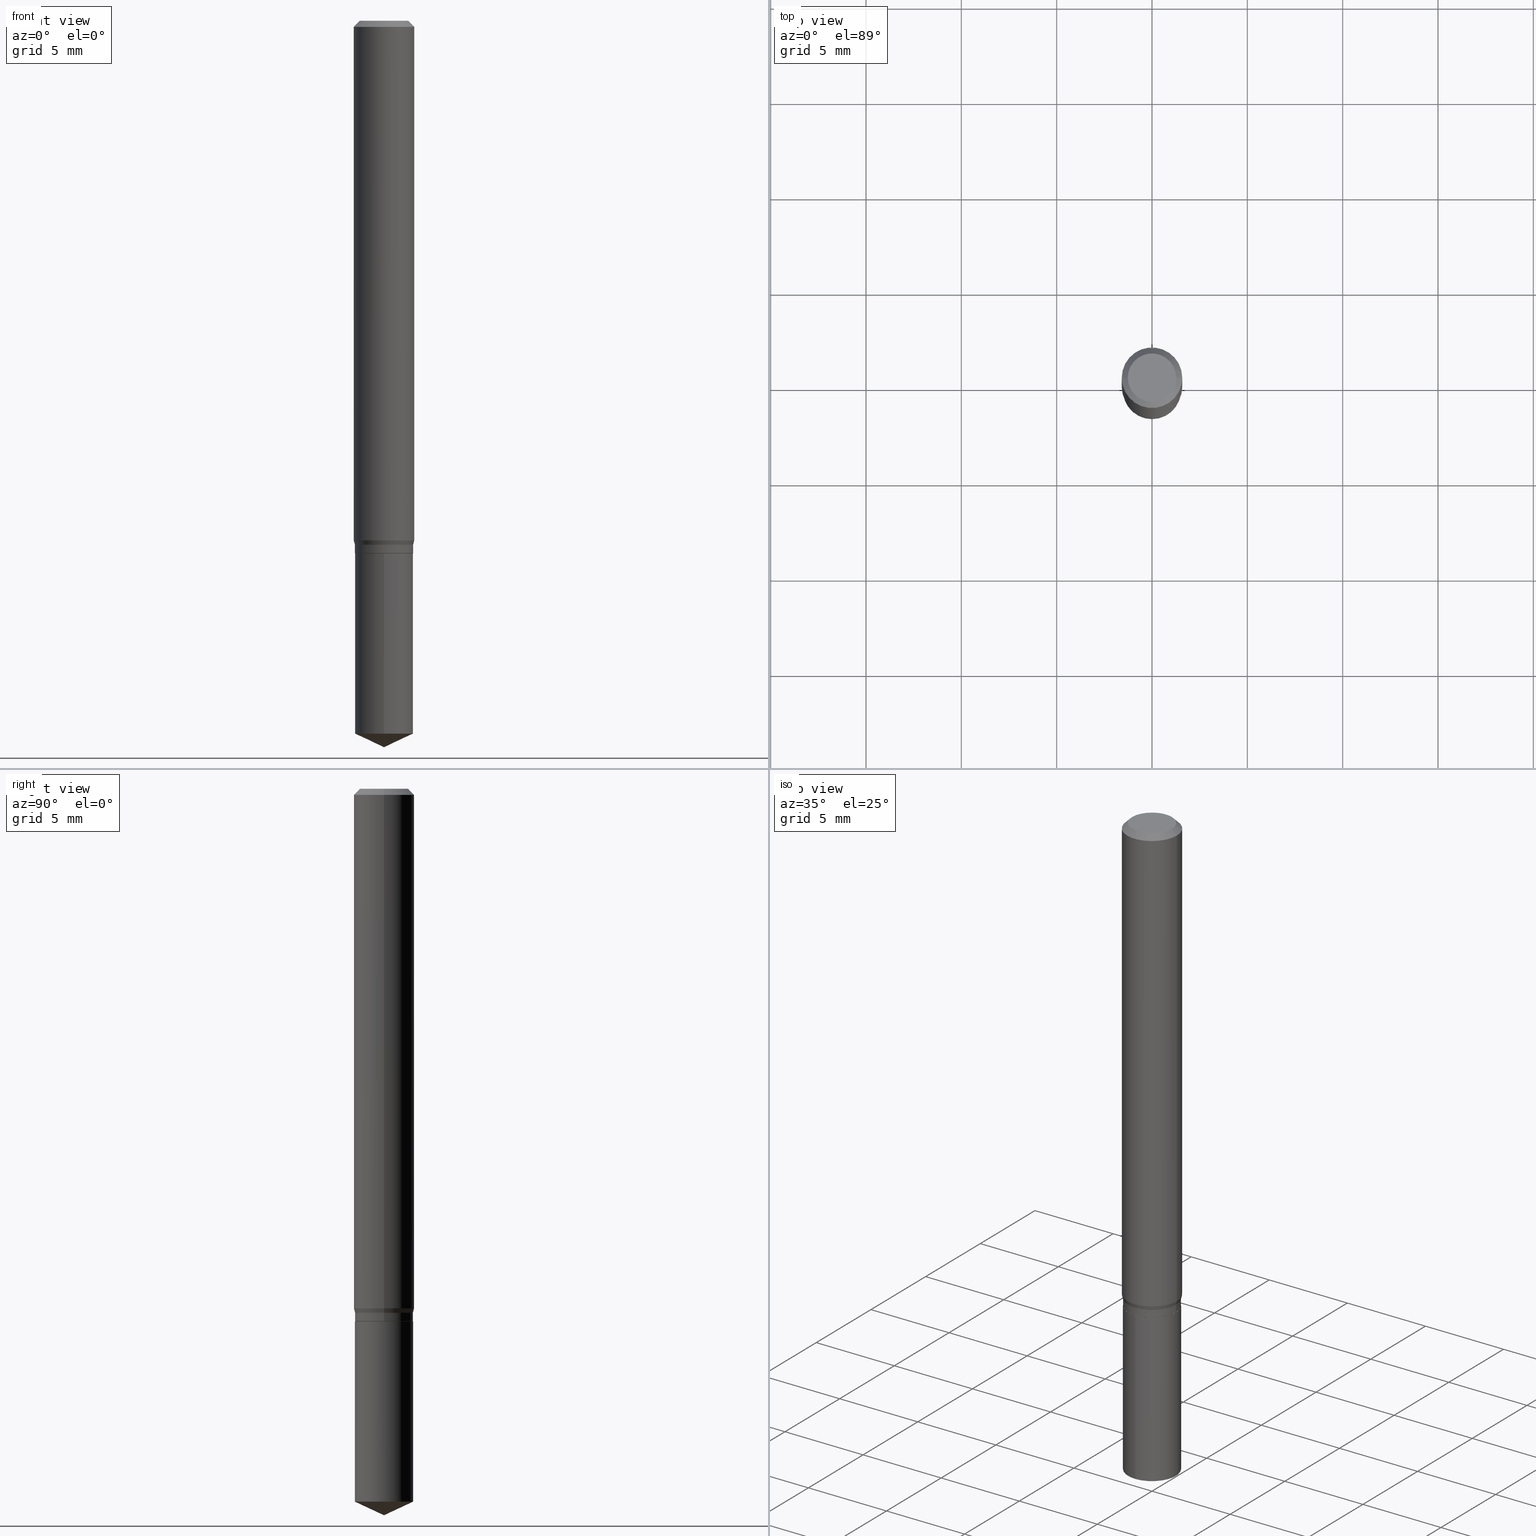
[diagram: canonical four-view strip — front | top / right | iso, engineering-drawing reading convention]
A machine part, canonical four-view strip (front | top / right | iso — engineering-drawing reading convention). The complete STEP part file that produces these views, byte-faithful:
ISO-10303-21;
HEADER;
FILE_DESCRIPTION (( 'STEP AP203' ),
    '1' );
FILE_NAME ('07396.STEP',
    '2024-04-23T21:02:20',
    ( '' ),
    ( '' ),
    'SwSTEP 2.0',
    'SolidWorks 2023',
    '' );
FILE_SCHEMA (( 'CONFIG_CONTROL_DESIGN' ));
ENDSEC;

DATA;
#1 = CARTESIAN_POINT ( 'NONE',  ( 2.688792952400557567E-29, -3.838883732058038598E-15, -1.099499999999999922 ) ) ;
#2 = ORIENTED_EDGE ( 'NONE', *, *, #121, .T. ) ;
#3 = EDGE_CURVE ( 'NONE', #392, #163, #63, .T. ) ;
#4 = DIRECTION ( 'NONE',  ( 1.000000000000000000, -6.982962677686265922E-15, 0.000000000000000000 ) ) ;
#5 = LOCAL_TIME ( 17, 2, 20.00000000000000000, #62 ) ;
#6 = CIRCLE ( 'NONE', #152, 0.04999999999999999584 ) ;
#7 = VERTEX_POINT ( 'NONE', #17 ) ;
#8 = CC_DESIGN_DATE_AND_TIME_ASSIGNMENT ( #375, #147, ( #234 ) ) ;
#9 = ORIENTED_EDGE ( 'NONE', *, *, #442, .T. ) ;
#10 = CARTESIAN_POINT ( 'NONE',  ( 3.056836007731440539E-31, -4.364351673553960451E-17, -0.01250000000000008049 ) ) ;
#11 = EDGE_LOOP ( 'NONE', ( #280, #80, #310, #47 ) ) ;
#12 = AXIS2_PLACEMENT_3D ( 'NONE', #243, #367, #105 ) ;
#13 = VECTOR ( 'NONE', #70, 39.37007874015748143 ) ;
#14 = ORIENTED_EDGE ( 'NONE', *, *, #213, .T. ) ;
#15 = ADVANCED_FACE ( 'NONE', ( #106 ), #421, .T. ) ;
#16 = ORIENTED_EDGE ( 'NONE', *, *, #42, .F. ) ;
#17 = CARTESIAN_POINT ( 'NONE',  ( -4.193269087950243510E-16, -0.06005000000000513399, -1.471998225127792548 ) ) ;
#18 = FACE_OUTER_BOUND ( 'NONE', #236, .T. ) ;
#19 = AXIS2_PLACEMENT_3D ( 'NONE', #364, #134, #338 ) ;
#20 = DIRECTION ( 'NONE',  ( 1.000000000000000000, -6.982962677686265922E-15, 0.000000000000000000 ) ) ;
#21 = ADVANCED_BREP_SHAPE_REPRESENTATION ( '07396', ( #36, #209, #160 ), #420 ) ;
#22 = ADVANCED_FACE ( 'NONE', ( #445 ), #39, .T. ) ;
#23 = DIRECTION ( 'NONE',  ( -6.982962677686265922E-15, -1.000000000000000000, 4.549288915344318469E-15 ) ) ;
#24 = VERTEX_POINT ( 'NONE', #140 ) ;
#25 = DIRECTION ( 'NONE',  ( -2.445468806185136597E-29, 3.491481338843145583E-15, 1.000000000000000000 ) ) ;
#26 = DIRECTION ( 'NONE',  ( 0.7071067811865232589, -2.468850131082003836E-15, 0.7071067811865715536 ) ) ;
#27 = DIRECTION ( 'NONE',  ( -2.445468806185136597E-29, 3.491481338843145583E-15, 1.000000000000000000 ) ) ;
#28 = PERSON_AND_ORGANIZATION ( #334, #453 ) ;
#29 = APPROVAL_PERSON_ORGANIZATION ( #219, #416, #337 ) ;
#30 = ADVANCED_FACE ( 'NONE', ( #441 ), #471, .T. ) ;
#31 = ORIENTED_EDGE ( 'NONE', *, *, #107, .T. ) ;
#32 = DIRECTION ( 'NONE',  ( -6.982962677686267499E-15, -1.000000000000000000, 3.520397390770436909E-15 ) ) ;
#33 = CARTESIAN_POINT ( 'NONE',  ( 0.000000000000000000, 0.000000000000000000, 0.000000000000000000 ) ) ;
#34 = DIRECTION ( 'NONE',  ( 0.7071067811865453523, -7.319954787623248157E-15, -0.7071067811865496822 ) ) ;
#35 = DIRECTION ( 'NONE',  ( -2.445399690415121530E-29, 3.491580316559632610E-15, 1.000000000000000000 ) ) ;
#36 = MANIFOLD_SOLID_BREP ( 'Body-Move/Copy2[1]', #290 ) ;
#37 = CARTESIAN_POINT ( 'NONE',  ( -0.06004999999999999921, -3.351101895804343500E-15, -1.082000000000000073 ) ) ;
#38 = VECTOR ( 'NONE', #57, 39.37007874015748854 ) ;
#39 = CONICAL_SURFACE ( 'NONE', #332, 0.06004999999999999921, 0.2617993877991489082 ) ;
#40 = EDGE_CURVE ( 'NONE', #347, #46, #122, .T. ) ;
#41 = LINE ( 'NONE', #228, #240 ) ;
#42 = EDGE_CURVE ( 'NONE', #24, #468, #172, .T. ) ;
#43 = ORIENTED_EDGE ( 'NONE', *, *, #3, .T. ) ;
#44 = LOCAL_TIME ( 17, 2, 20.00000000000000000, #437 ) ;
#45 = VECTOR ( 'NONE', #26, 39.37007874015748854 ) ;
#46 = VERTEX_POINT ( 'NONE', #469 ) ;
#47 = ORIENTED_EDGE ( 'NONE', *, *, #355, .F. ) ;
#48 = EDGE_LOOP ( 'NONE', ( #84, #235, #351, #239 ) ) ;
#49 = CIRCLE ( 'NONE', #488, 0.06250000000000000000 ) ;
#50 = EDGE_CURVE ( 'NONE', #461, #273, #289, .T. ) ;
#51 = EDGE_LOOP ( 'NONE', ( #198, #196 ) ) ;
#52 = ORIENTED_EDGE ( 'NONE', *, *, #114, .T. ) ;
#53 = CARTESIAN_POINT ( 'NONE',  ( 0.06250000000000006939, -4.364351673553921624E-16, 3.047610484872463374E-30 ) ) ;
#54 = ORIENTED_EDGE ( 'NONE', *, *, #121, .F. ) ;
#55 =( CONVERSION_BASED_UNIT ( 'INCH', #104 ) LENGTH_UNIT ( ) NAMED_UNIT ( #157 ) );
#56 = AXIS2_PLACEMENT_3D ( 'NONE', #319, #64, #478 ) ;
#57 = DIRECTION ( 'NONE',  ( -6.328713451373378845E-15, -0.9063077870366499367, 0.4226182617406992748 ) ) ;
#58 = DATE_AND_TIME ( #440, #395 ) ;
#59 = AXIS2_PLACEMENT_3D ( 'NONE', #262, #346, #150 ) ;
#60 = LINE ( 'NONE', #212, #161 ) ;
#61 = DIRECTION ( 'NONE',  ( -2.445468806185136597E-29, 3.491481338843145583E-15, 1.000000000000000000 ) ) ;
#62 = COORDINATED_UNIVERSAL_TIME_OFFSET ( 5, 0, .BEHIND. ) ;
#63 = LINE ( 'NONE', #360, #465 ) ;
#64 = DIRECTION ( 'NONE',  ( -2.445468806185136597E-29, 3.491481338843145583E-15, 1.000000000000000000 ) ) ;
#65 = CARTESIAN_POINT ( 'NONE',  ( 3.668099535622682155E-29, -5.237370474839448718E-15, -1.500000000000000222 ) ) ;
#66 = CARTESIAN_POINT ( 'NONE',  ( -4.193269087950333736E-16, -0.06005000000000384336, -1.099999999999999645 ) ) ;
#67 = LINE ( 'NONE', #53, #119 ) ;
#68 = SHAPE_DEFINITION_REPRESENTATION ( #123, #21 ) ;
#69 = SECURITY_CLASSIFICATION ( '', '', #136 ) ;
#70 = DIRECTION ( 'NONE',  ( 0.2588190451025202399, 1.565188264969631040E-15, 0.9659258262890684232 ) ) ;
#71 = CONICAL_SURFACE ( 'NONE', #363, 84.42940631927474726, 1.134464013796317783 ) ;
#72 = PERSON_AND_ORGANIZATION_ROLE ( 'classification_officer' ) ;
#73 = DIRECTION ( 'NONE',  ( 2.445468806185136597E-29, -3.491481338843145583E-15, -1.000000000000000000 ) ) ;
#74 = FACE_OUTER_BOUND ( 'NONE', #252, .T. ) ;
#75 = EDGE_CURVE ( 'NONE', #461, #24, #322, .T. ) ;
#76 = DIRECTION ( 'NONE',  ( -2.445468806185136597E-29, 3.491481338843145583E-15, 1.000000000000000000 ) ) ;
#77 = AXIS2_PLACEMENT_3D ( 'NONE', #479, #146, #294 ) ;
#78 = AXIS2_PLACEMENT_3D ( 'NONE', #486, #298, #226 ) ;
#79 = CC_DESIGN_PERSON_AND_ORGANIZATION_ASSIGNMENT ( #279, #94, ( #113 ) ) ;
#80 = ORIENTED_EDGE ( 'NONE', *, *, #40, .T. ) ;
#81 = ORIENTED_EDGE ( 'NONE', *, *, #202, .F. ) ;
#82 = AXIS2_PLACEMENT_3D ( 'NONE', #444, #362, #108 ) ;
#83 = AXIS2_PLACEMENT_3D ( 'NONE', #174, #137, #287 ) ;
#84 = ORIENTED_EDGE ( 'NONE', *, *, #194, .T. ) ;
#85 = CARTESIAN_POINT ( 'NONE',  ( 3.056836007731440539E-31, -4.364351673553960451E-17, -0.01250000000000008049 ) ) ;
#86 = ORIENTED_EDGE ( 'NONE', *, *, #345, .T. ) ;
#87 = EDGE_CURVE ( 'NONE', #24, #461, #301, .T. ) ;
#88 = FACE_OUTER_BOUND ( 'NONE', #357, .T. ) ;
#89 = ORIENTED_EDGE ( 'NONE', *, *, #40, .F. ) ;
#90 = VECTOR ( 'NONE', #97, 39.37007874015748143 ) ;
#91 = VECTOR ( 'NONE', #224, 39.37007874015748143 ) ;
#92 = EDGE_LOOP ( 'NONE', ( #199, #2, #292, #177 ) ) ;
#93 = EDGE_CURVE ( 'NONE', #468, #273, #306, .T. ) ;
#94 = PERSON_AND_ORGANIZATION_ROLE ( 'design_owner' ) ;
#95 = DIRECTION ( 'NONE',  ( 1.000000000000000000, -6.982962677686265922E-15, 0.000000000000000000 ) ) ;
#96 = DIRECTION ( 'NONE',  ( -1.000000000000000000, 6.982962677686266711E-15, 0.000000000000000000 ) ) ;
#97 = DIRECTION ( 'NONE',  ( -2.445399690415121810E-29, 3.491580316559632610E-15, 1.000000000000000000 ) ) ;
#98 = CALENDAR_DATE ( 2024, 23, 4 ) ;
#99 = CARTESIAN_POINT ( 'NONE',  ( -9.260740279983036507E-28, 1.322265303911854087E-13, 37.87007874015748143 ) ) ;
#100 = CIRCLE ( 'NONE', #463, 0.04999999999999999584 ) ;
#101 = CARTESIAN_POINT ( 'NONE',  ( 0.06250000000000000000, -4.724246415962602840E-16, -0.01250000000000008049 ) ) ;
#102 = CIRCLE ( 'NONE', #365, 0.06004999999999999921 ) ;
#103 = CARTESIAN_POINT ( 'NONE',  ( 0.05954999999999999877, -4.256464900183677240E-15, -1.100000000000000089 ) ) ;
#104 = LENGTH_MEASURE_WITH_UNIT ( LENGTH_MEASURE( 0.02539999999999999897 ), #214 );
#105 = DIRECTION ( 'NONE',  ( -6.982962677686265922E-15, -1.000000000000000000, 4.549288915344318469E-15 ) ) ;
#106 = FACE_OUTER_BOUND ( 'NONE', #125, .T. ) ;
#107 = EDGE_CURVE ( 'NONE', #7, #206, #325, .T. ) ;
#108 = DIRECTION ( 'NONE',  ( 1.000000000000000000, -6.982962677686265922E-15, 4.876176775795935793E-29 ) ) ;
#109 = COORDINATED_UNIVERSAL_TIME_OFFSET ( 5, 0, .BEHIND. ) ;
#110 = CARTESIAN_POINT ( 'NONE',  ( 3.668099535622682715E-29, -5.237370474839449507E-15, -1.500000000000000222 ) ) ;
#111 = CC_DESIGN_SECURITY_CLASSIFICATION ( #69, ( #238 ) ) ;
#112 = DIRECTION ( 'NONE',  ( 1.000000000000000000, -6.982962677686267499E-15, 4.876176775795936353E-29 ) ) ;
#113 = PRODUCT ( '07396', '07396', '', ( #305 ) ) ;
#114 = EDGE_CURVE ( 'NONE', #46, #347, #185, .T. ) ;
#115 = DIRECTION ( 'NONE',  ( -1.000000000000000000, 6.982962677686266711E-15, 0.000000000000000000 ) ) ;
#116 = ORIENTED_EDGE ( 'NONE', *, *, #93, .F. ) ;
#117 = CARTESIAN_POINT ( 'NONE',  ( 2.623637044401447807E-29, -3.745858363540191586E-15, -1.072856475521455799 ) ) ;
#118 = VECTOR ( 'NONE', #34, 39.37007874015748143 ) ;
#119 = VECTOR ( 'NONE', #218, 39.37007874015748143 ) ;
#120 = CARTESIAN_POINT ( 'NONE',  ( 0.000000000000000000, 0.000000000000000000, 0.000000000000000000 ) ) ;
#121 = EDGE_CURVE ( 'NONE', #203, #163, #60, .T. ) ;
#122 = CIRCLE ( 'NONE', #315, 0.06004999999999999921 ) ;
#123 = PRODUCT_DEFINITION_SHAPE ( 'NONE', 'NONE',  #234 ) ;
#124 = ORIENTED_EDGE ( 'NONE', *, *, #75, .T. ) ;
#125 = EDGE_LOOP ( 'NONE', ( #307, #233, #130 ) ) ;
#126 = VECTOR ( 'NONE', #457, 39.37007874015748143 ) ;
#127 = CARTESIAN_POINT ( 'NONE',  ( 0.04999999999999999584, -4.077247707424184212E-16, -1.592040838888913461E-18 ) ) ;
#128 = EDGE_CURVE ( 'NONE', #468, #347, #41, .T. ) ;
#129 = VERTEX_POINT ( 'NONE', #458 ) ;
#130 = ORIENTED_EDGE ( 'NONE', *, *, #213, .F. ) ;
#131 = ORIENTED_EDGE ( 'NONE', *, *, #75, .F. ) ;
#132 = APPROVAL_PERSON_ORGANIZATION ( #216, #274, #371 ) ;
#133 = CC_DESIGN_DATE_AND_TIME_ASSIGNMENT ( #225, #451, ( #69 ) ) ;
#134 = DIRECTION ( 'NONE',  ( -2.445468806185136597E-29, 3.491481338843145583E-15, 1.000000000000000000 ) ) ;
#135 = PLANE ( 'NONE',  #82 ) ;
#136 = SECURITY_CLASSIFICATION_LEVEL ( 'unclassified' ) ;
#137 = DIRECTION ( 'NONE',  ( -2.445468806185136597E-29, 3.491481338843145583E-15, 1.000000000000000000 ) ) ;
#138 = DIRECTION ( 'NONE',  ( -2.445468806185136597E-29, 3.491481338843145583E-15, 1.000000000000000000 ) ) ;
#139 = CALENDAR_DATE ( 2024, 23, 4 ) ;
#140 = CARTESIAN_POINT ( 'NONE',  ( -0.05954999999999999877, -3.414852046408209692E-15, -1.100000000000000089 ) ) ;
#141 = CARTESIAN_POINT ( 'NONE',  ( 4.266809128239669773E-16, 0.06004999999999616200, -1.100000000000000311 ) ) ;
#142 = APPROVAL_ROLE ( '' ) ;
#143 = CLOSED_SHELL ( 'NONE', ( #449, #473, #482, #316, #427, #145, #22, #30, #256, #248, #388, #374 ) ) ;
#144 = CARTESIAN_POINT ( 'NONE',  ( 2.688792952400557567E-29, -3.838883732058038598E-15, -1.099499999999999922 ) ) ;
#145 = ADVANCED_FACE ( 'NONE', ( #74 ), #448, .T. ) ;
#146 = DIRECTION ( 'NONE',  ( -2.445468806185136597E-29, 3.491481338843145583E-15, 1.000000000000000000 ) ) ;
#147 = DATE_TIME_ROLE ( 'creation_date' ) ;
#148 = CARTESIAN_POINT ( 'NONE',  ( 2.645997248292317923E-29, -3.777782808628283606E-15, -1.082000000000000073 ) ) ;
#149 = LINE ( 'NONE', #373, #432 ) ;
#150 = DIRECTION ( 'NONE',  ( -1.000000000000000000, 6.982962677686265922E-15, -4.876176775795935793E-29 ) ) ;
#151 = EDGE_CURVE ( 'NONE', #347, #203, #384, .T. ) ;
#152 = AXIS2_PLACEMENT_3D ( 'NONE', #329, #61, #187 ) ;
#153 = CYLINDRICAL_SURFACE ( 'NONE', #78, 0.06004999999999999921 ) ;
#154 = CIRCLE ( 'NONE', #426, 0.06004999999999999921 ) ;
#155 = VERTEX_POINT ( 'NONE', #110 ) ;
#156 = CARTESIAN_POINT ( 'NONE',  ( 0.06250000000000012490, -4.182293530895583255E-15, -1.072856475521455799 ) ) ;
#157 = DIMENSIONAL_EXPONENTS ( 1.000000000000000000, 0.000000000000000000, 0.000000000000000000, 0.000000000000000000, 0.000000000000000000, 0.000000000000000000, 0.000000000000000000 ) ;
#158 = CARTESIAN_POINT ( 'NONE',  ( 3.599700031366129120E-29, -5.139491153378780407E-15, -1.471998225127792770 ) ) ;
#159 = APPLICATION_CONTEXT ( 'configuration controlled 3d designs of mechanical parts and assemblies' ) ;
#160 = AXIS2_PLACEMENT_3D ( 'NONE', #120, #390, #311 ) ;
#161 = VECTOR ( 'NONE', #369, 39.37007874015748143 ) ;
#162 = EDGE_LOOP ( 'NONE', ( #131, #391 ) ) ;
#163 = VERTEX_POINT ( 'NONE', #296 ) ;
#164 = DIRECTION ( 'NONE',  ( -2.445468806185136597E-29, 3.491481338843145583E-15, 1.000000000000000000 ) ) ;
#165 = CC_DESIGN_PERSON_AND_ORGANIZATION_ASSIGNMENT ( #341, #254, ( #238 ) ) ;
#166 = ORIENTED_EDGE ( 'NONE', *, *, #361, .F. ) ;
#167 = CONICAL_SURFACE ( 'NONE', #249, 0.06250000000000000000, 0.7853981633974452814 ) ;
#168 = DIRECTION ( 'NONE',  ( 2.445468806185136597E-29, -3.491481338843145583E-15, -1.000000000000000000 ) ) ;
#169 = ORIENTED_EDGE ( 'NONE', *, *, #339, .T. ) ;
#170 = EDGE_LOOP ( 'NONE', ( #52, #277, #353, #81 ) ) ;
#171 = ADVANCED_FACE ( 'NONE', ( #259 ), #153, .T. ) ;
#172 = LINE ( 'NONE', #474, #455 ) ;
#173 = CARTESIAN_POINT ( 'NONE',  ( 2.645997248292317923E-29, -3.777782808628283606E-15, -1.082000000000000073 ) ) ;
#174 = CARTESIAN_POINT ( 'NONE',  ( 2.645997248292317923E-29, -3.777782808628283606E-15, -1.082000000000000073 ) ) ;
#175 = CYLINDRICAL_SURFACE ( 'NONE', #77, 0.06004999999999999921 ) ;
#176 = APPLICATION_PROTOCOL_DEFINITION ( 'international standard', 'config_control_design', 1994, #381 ) ;
#177 = ORIENTED_EDGE ( 'NONE', *, *, #339, .F. ) ;
#178 = CARTESIAN_POINT ( 'NONE',  ( -9.260740279983036507E-28, 1.322265303911854087E-13, 37.87007874015748143 ) ) ;
#179 = EDGE_CURVE ( 'NONE', #7, #318, #477, .T. ) ;
#180 = COORDINATED_UNIVERSAL_TIME_OFFSET ( 5, 0, .BEHIND. ) ;
#181 = CARTESIAN_POINT ( 'NONE',  ( 2.645997248292317923E-29, -3.777782808628283606E-15, -1.082000000000000073 ) ) ;
#182 = AXIS2_PLACEMENT_3D ( 'NONE', #173, #324, #251 ) ;
#183 = LINE ( 'NONE', #141, #90 ) ;
#184 = APPROVAL_DATE_TIME ( #58, #349 ) ;
#185 = CIRCLE ( 'NONE', #83, 0.06004999999999999921 ) ;
#186 = ORIENTED_EDGE ( 'NONE', *, *, #179, .T. ) ;
#187 = DIRECTION ( 'NONE',  ( 1.000000000000000000, -6.982962677686265922E-15, 4.875957971899673662E-29 ) ) ;
#188 = DIRECTION ( 'NONE',  ( -2.445399690415121530E-29, 3.491580316559632610E-15, 1.000000000000000000 ) ) ;
#189 = PRODUCT_RELATED_PRODUCT_CATEGORY ( 'detail', '', ( #113 ) ) ;
#190 = CARTESIAN_POINT ( 'NONE',  ( 0.06004999999999999921, -4.197109717423343752E-15, -1.082000000000000073 ) ) ;
#191 = CIRCLE ( 'NONE', #403, 0.06004999999999999921 ) ;
#192 = CARTESIAN_POINT ( 'NONE',  ( -0.06250000000000012490, -3.301769153690127392E-15, -1.072856475521455799 ) ) ;
#193 = CARTESIAN_POINT ( 'NONE',  ( -4.193269087950333736E-16, -0.06005000000000384336, -1.099999999999999645 ) ) ;
#194 = EDGE_CURVE ( 'NONE', #273, #468, #102, .T. ) ;
#195 = CONICAL_SURFACE ( 'NONE', #385, 0.05954999999999999877, 0.7853981633974141952 ) ;
#196 = ORIENTED_EDGE ( 'NONE', *, *, #431, .T. ) ;
#197 = EDGE_LOOP ( 'NONE', ( #124, #314, #247, #438 ) ) ;
#198 = ORIENTED_EDGE ( 'NONE', *, *, #293, .T. ) ;
#199 = ORIENTED_EDGE ( 'NONE', *, *, #241, .T. ) ;
#200 = APPROVAL_PERSON_ORGANIZATION ( #330, #349, #142 ) ;
#201 = AXIS2_PLACEMENT_3D ( 'NONE', #99, #217, #328 ) ;
#202 = EDGE_CURVE ( 'NONE', #46, #266, #267, .T. ) ;
#203 = VERTEX_POINT ( 'NONE', #192 ) ;
#204 = DIRECTION ( 'NONE',  ( -2.445468806185136597E-29, 3.491481338843145583E-15, 1.000000000000000000 ) ) ;
#205 = CARTESIAN_POINT ( 'NONE',  ( 2.690015686803650369E-29, -3.840629472727460101E-15, -1.100000000000000089 ) ) ;
#206 = VERTEX_POINT ( 'NONE', #193 ) ;
#207 = CIRCLE ( 'NONE', #356, 0.06250000000000000000 ) ;
#208 = FACE_OUTER_BOUND ( 'NONE', #92, .T. ) ;
#209 = MANIFOLD_SOLID_BREP ( 'Body-Move/Copy2[2]', #143 ) ;
#210 = CARTESIAN_POINT ( 'NONE',  ( -0.04999999999999999584, 3.709698922520826725E-16, -1.592040838894077649E-18 ) ) ;
#211 = APPROVAL_DATE_TIME ( #412, #274 ) ;
#212 = CARTESIAN_POINT ( 'NONE',  ( -0.06250000000000006939, 4.440892098500631092E-16, -3.074334431409319267E-30 ) ) ;
#213 = EDGE_CURVE ( 'NONE', #318, #7, #154, .T. ) ;
#214 =( LENGTH_UNIT ( ) NAMED_UNIT ( * ) SI_UNIT ( $, .METRE. ) );
#215 = FACE_OUTER_BOUND ( 'NONE', #170, .T. ) ;
#216 = PERSON_AND_ORGANIZATION ( #334, #453 ) ;
#217 = DIRECTION ( 'NONE',  ( -2.445399690415121530E-29, 3.491580316559632610E-15, 1.000000000000000000 ) ) ;
#218 = DIRECTION ( 'NONE',  ( -2.445468806185136877E-29, 3.491481338843145188E-15, 1.000000000000000000 ) ) ;
#219 = PERSON_AND_ORGANIZATION ( #334, #453 ) ;
#220 = DIRECTION ( 'NONE',  ( -2.445399690415121810E-29, 3.491580316559632610E-15, 1.000000000000000000 ) ) ;
#221 = CC_DESIGN_APPROVAL ( #349, ( #234 ) ) ;
#222 = CARTESIAN_POINT ( 'NONE',  ( 4.266809128239761971E-16, 0.06004999999999616894, -1.100000000000000311 ) ) ;
#223 = CC_DESIGN_PERSON_AND_ORGANIZATION_ASSIGNMENT ( #261, #258, ( #238 ) ) ;
#224 = DIRECTION ( 'NONE',  ( -2.445468806185136877E-29, 3.491481338843145188E-15, 1.000000000000000000 ) ) ;
#225 = DATE_AND_TIME ( #402, #350 ) ;
#226 = DIRECTION ( 'NONE',  ( -6.982962677686265922E-15, -1.000000000000000000, 4.549288915344318469E-15 ) ) ;
#227 = DIRECTION ( 'NONE',  ( 1.000000000000000000, -6.982962677686265133E-15, 0.000000000000000000 ) ) ;
#228 = CARTESIAN_POINT ( 'NONE',  ( -0.06004999999999999921, 4.266809128239401560E-16, -2.953820521698070972E-30 ) ) ;
#229 = CONICAL_SURFACE ( 'NONE', #260, 0.05954999999999999877, 0.7853981633974141952 ) ;
#230 = PLANE ( 'NONE',  #434 ) ;
#231 = AXIS2_PLACEMENT_3D ( 'NONE', #302, #73, #115 ) ;
#232 = EDGE_CURVE ( 'NONE', #273, #46, #342, .T. ) ;
#233 = ORIENTED_EDGE ( 'NONE', *, *, #407, .T. ) ;
#234 = PRODUCT_DEFINITION ( 'UNKNOWN', '', #238, #271 ) ;
#235 = ORIENTED_EDGE ( 'NONE', *, *, #128, .T. ) ;
#236 = EDGE_LOOP ( 'NONE', ( #186, #466, #284, #317 ) ) ;
#237 = ORIENTED_EDGE ( 'NONE', *, *, #355, .T. ) ;
#238 = PRODUCT_DEFINITION_FORMATION_WITH_SPECIFIED_SOURCE ( 'ANY', '', #113, .NOT_KNOWN. ) ;
#239 = ORIENTED_EDGE ( 'NONE', *, *, #232, .F. ) ;
#240 = VECTOR ( 'NONE', #387, 39.37007874015748143 ) ;
#241 = EDGE_CURVE ( 'NONE', #266, #203, #443, .T. ) ;
#242 = ORIENTED_EDGE ( 'NONE', *, *, #442, .F. ) ;
#243 = CARTESIAN_POINT ( 'NONE',  ( 2.690015686803650369E-29, -3.840629472727460101E-15, -1.100000000000000089 ) ) ;
#244 = DIRECTION ( 'NONE',  ( -2.445468806185136597E-29, 3.491481338843145583E-15, 1.000000000000000000 ) ) ;
#245 = DIRECTION ( 'NONE',  ( -2.445399690415121530E-29, 3.491580316559632610E-15, 1.000000000000000000 ) ) ;
#246 = APPROVAL_STATUS ( 'not_yet_approved' ) ;
#247 = ORIENTED_EDGE ( 'NONE', *, *, #194, .F. ) ;
#248 = ADVANCED_FACE ( 'NONE', ( #379 ), #348, .F. ) ;
#249 = AXIS2_PLACEMENT_3D ( 'NONE', #85, #168, #96 ) ;
#250 = CYLINDRICAL_SURFACE ( 'NONE', #56, 0.06250000000000006939 ) ;
#251 = DIRECTION ( 'NONE',  ( 1.000000000000000000, -6.982962677686265922E-15, 0.000000000000000000 ) ) ;
#252 = EDGE_LOOP ( 'NONE', ( #481, #489, #430, #89 ) ) ;
#253 = LINE ( 'NONE', #65, #38 ) ;
#254 = PERSON_AND_ORGANIZATION_ROLE ( 'creator' ) ;
#255 = DIRECTION ( 'NONE',  ( 1.000000000000000000, -6.982962677686266711E-15, 4.876176775795935793E-29 ) ) ;
#256 = ADVANCED_FACE ( 'NONE', ( #417 ), #270, .T. ) ;
#257 = CARTESIAN_POINT ( 'NONE',  ( 2.623637044401447807E-29, -3.745858363540191586E-15, -1.072856475521455799 ) ) ;
#258 = PERSON_AND_ORGANIZATION_ROLE ( 'design_supplier' ) ;
#259 = FACE_OUTER_BOUND ( 'NONE', #462, .T. ) ;
#260 = AXIS2_PLACEMENT_3D ( 'NONE', #309, #264, #227 ) ;
#261 = PERSON_AND_ORGANIZATION ( #334, #453 ) ;
#262 = CARTESIAN_POINT ( 'NONE',  ( 1.946643104841063088E-47, -2.779290439833033990E-33, -7.960204194457798443E-19 ) ) ;
#263 = ORIENTED_EDGE ( 'NONE', *, *, #87, .T. ) ;
#264 = DIRECTION ( 'NONE',  ( -2.445468806185136597E-29, 3.491481338843145583E-15, 1.000000000000000000 ) ) ;
#265 = DIRECTION ( 'NONE',  ( 2.445399690415121250E-29, -3.491580316559632610E-15, -1.000000000000000000 ) ) ;
#266 = VERTEX_POINT ( 'NONE', #156 ) ;
#267 = LINE ( 'NONE', #190, #13 ) ;
#268 = ADVANCED_FACE ( 'NONE', ( #343 ), #230, .F. ) ;
#269 = CONICAL_SURFACE ( 'NONE', #182, 0.06004999999999999921, 0.2617993877991489082 ) ;
#270 = CONICAL_SURFACE ( 'NONE', #231, 0.06250000000000000000, 0.7853981633974452814 ) ;
#271 = DESIGN_CONTEXT ( 'detailed design', #381, 'design' ) ;
#272 = FACE_OUTER_BOUND ( 'NONE', #197, .T. ) ;
#273 = VERTEX_POINT ( 'NONE', #378 ) ;
#274 = APPROVAL ( #286, 'UNSPECIFIED' ) ;
#275 = ORIENTED_EDGE ( 'NONE', *, *, #431, .F. ) ;
#276 = UNCERTAINTY_MEASURE_WITH_UNIT (LENGTH_MEASURE( 1.000000000000000082E-05 ), #55, 'distance_accuracy_value', 'NONE');
#277 = ORIENTED_EDGE ( 'NONE', *, *, #151, .T. ) ;
#278 = AXIS2_PLACEMENT_3D ( 'NONE', #117, #76, #303 ) ;
#279 = PERSON_AND_ORGANIZATION ( #334, #453 ) ;
#280 = ORIENTED_EDGE ( 'NONE', *, *, #151, .F. ) ;
#281 = EDGE_LOOP ( 'NONE', ( #242, #424, #43, #352 ) ) ;
#282 = ADVANCED_FACE ( 'NONE', ( #340 ), #71, .T. ) ;
#283 = CC_DESIGN_APPROVAL ( #416, ( #238 ) ) ;
#284 = ORIENTED_EDGE ( 'NONE', *, *, #397, .F. ) ;
#285 = CYLINDRICAL_SURFACE ( 'NONE', #300, 0.06004999999999999921 ) ;
#286 = APPROVAL_STATUS ( 'not_yet_approved' ) ;
#287 = DIRECTION ( 'NONE',  ( 1.000000000000000000, -6.982962677686265922E-15, 0.000000000000000000 ) ) ;
#288 = DIRECTION ( 'NONE',  ( 1.000000000000000000, -6.982962677686265922E-15, 4.875957971899673662E-29 ) ) ;
#289 = LINE ( 'NONE', #103, #45 ) ;
#290 = CLOSED_SHELL ( 'NONE', ( #393, #282, #15, #171, #268 ) ) ;
#291 = CARTESIAN_POINT ( 'NONE',  ( 3.056836007731440539E-31, -4.364351673553960451E-17, -0.01250000000000008049 ) ) ;
#292 = ORIENTED_EDGE ( 'NONE', *, *, #345, .F. ) ;
#293 = EDGE_CURVE ( 'NONE', #392, #467, #6, .T. ) ;
#294 = DIRECTION ( 'NONE',  ( 1.000000000000000000, -6.982962677686267499E-15, 4.876176775795936353E-29 ) ) ;
#295 = DATE_AND_TIME ( #480, #5 ) ;
#296 = CARTESIAN_POINT ( 'NONE',  ( -0.06250000000000000000, -1.450661730287801577E-15, -0.01250000000000008049 ) ) ;
#297 = DIRECTION ( 'NONE',  ( 1.000000000000000000, -6.982962677686264344E-15, 0.000000000000000000 ) ) ;
#298 = DIRECTION ( 'NONE',  ( -2.445399690415121530E-29, 3.491580316559632610E-15, 1.000000000000000000 ) ) ;
#299 = EDGE_LOOP ( 'NONE', ( #433, #312, #359 ) ) ;
#300 = AXIS2_PLACEMENT_3D ( 'NONE', #446, #245, #401 ) ;
#301 = CIRCLE ( 'NONE', #358, 0.05954999999999999877 ) ;
#302 = CARTESIAN_POINT ( 'NONE',  ( 3.056836007731440539E-31, -4.364351673553960451E-17, -0.01250000000000008049 ) ) ;
#303 = DIRECTION ( 'NONE',  ( 1.000000000000000000, -6.982962677686264344E-15, 0.000000000000000000 ) ) ;
#304 = CARTESIAN_POINT ( 'NONE',  ( 2.690015686803650369E-29, -3.840629472727460101E-15, -1.100000000000000089 ) ) ;
#305 = MECHANICAL_CONTEXT ( 'NONE', #159, 'mechanical' ) ;
#306 = CIRCLE ( 'NONE', #386, 0.06004999999999999921 ) ;
#307 = ORIENTED_EDGE ( 'NONE', *, *, #323, .F. ) ;
#308 = CC_DESIGN_PERSON_AND_ORGANIZATION_ASSIGNMENT ( #28, #327, ( #234 ) ) ;
#309 = CARTESIAN_POINT ( 'NONE',  ( 2.690015686803650369E-29, -3.840629472727460101E-15, -1.100000000000000089 ) ) ;
#310 = ORIENTED_EDGE ( 'NONE', *, *, #202, .T. ) ;
#311 = DIRECTION ( 'NONE',  ( 1.000000000000000000, 0.000000000000000000, 0.000000000000000000 ) ) ;
#312 = ORIENTED_EDGE ( 'NONE', *, *, #323, .T. ) ;
#313 = DIRECTION ( 'NONE',  ( 1.000000000000000000, -6.982962677686266711E-15, 0.000000000000000000 ) ) ;
#314 = ORIENTED_EDGE ( 'NONE', *, *, #42, .T. ) ;
#315 = AXIS2_PLACEMENT_3D ( 'NONE', #181, #331, #372 ) ;
#316 = ADVANCED_FACE ( 'NONE', ( #215 ), #269, .T. ) ;
#317 = ORIENTED_EDGE ( 'NONE', *, *, #107, .F. ) ;
#318 = VERTEX_POINT ( 'NONE', #484 ) ;
#319 = CARTESIAN_POINT ( 'NONE',  ( 0.000000000000000000, 0.000000000000000000, 0.000000000000000000 ) ) ;
#320 = CC_DESIGN_APPROVAL ( #274, ( #69 ) ) ;
#321 = DIRECTION ( 'NONE',  ( -0.7071067811865232589, 7.493145998870265808E-15, 0.7071067811865715536 ) ) ;
#322 = CIRCLE ( 'NONE', #19, 0.05954999999999999877 ) ;
#323 = EDGE_CURVE ( 'NONE', #155, #318, #149, .T. ) ;
#324 = DIRECTION ( 'NONE',  ( -2.445468806185136597E-29, 3.491481338843145583E-15, 1.000000000000000000 ) ) ;
#325 = LINE ( 'NONE', #66, #377 ) ;
#326 = DIRECTION ( 'NONE',  ( 6.439704144417034297E-15, 0.9063077870366528233, 0.4226182617406930020 ) ) ;
#327 = PERSON_AND_ORGANIZATION_ROLE ( 'creator' ) ;
#328 = DIRECTION ( 'NONE',  ( -6.982962677686267499E-15, -1.000000000000000000, 3.520397390770436909E-15 ) ) ;
#329 = CARTESIAN_POINT ( 'NONE',  ( 3.893286209682126177E-47, -5.558580879666067980E-33, -1.592040838891559689E-18 ) ) ;
#330 = PERSON_AND_ORGANIZATION ( #334, #453 ) ;
#331 = DIRECTION ( 'NONE',  ( -2.445468806185136597E-29, 3.491481338843145583E-15, 1.000000000000000000 ) ) ;
#332 = AXIS2_PLACEMENT_3D ( 'NONE', #148, #435, #95 ) ;
#333 = AXIS2_PLACEMENT_3D ( 'NONE', #257, #27, #297 ) ;
#334 = PERSON ( 'UNSPECIFIED', 'UNSPECIFIED', 'UNSPECIFIED', ('UNSPECIFIED'), ('UNSPECIFIED'), ('UNSPECIFIED') ) ;
#335 = AXIS2_PLACEMENT_3D ( 'NONE', #382, #35, #413 ) ;
#336 = DIRECTION ( 'NONE',  ( 1.000000000000000000, -6.982962677686265133E-15, 0.000000000000000000 ) ) ;
#337 = APPROVAL_ROLE ( '' ) ;
#338 = DIRECTION ( 'NONE',  ( 1.000000000000000000, -6.982962677686265133E-15, 0.000000000000000000 ) ) ;
#339 = EDGE_CURVE ( 'NONE', #266, #129, #67, .T. ) ;
#340 = FACE_OUTER_BOUND ( 'NONE', #299, .T. ) ;
#341 = PERSON_AND_ORGANIZATION ( #334, #453 ) ;
#342 = LINE ( 'NONE', #456, #91 ) ;
#343 = FACE_OUTER_BOUND ( 'NONE', #380, .T. ) ;
#344 = VERTEX_POINT ( 'NONE', #222 ) ;
#345 = EDGE_CURVE ( 'NONE', #129, #163, #49, .T. ) ;
#346 = DIRECTION ( 'NONE',  ( 2.438088387897960049E-29, -3.491481338843145188E-15, -1.000000000000000000 ) ) ;
#347 = VERTEX_POINT ( 'NONE', #408 ) ;
#348 = PLANE ( 'NONE',  #59 ) ;
#349 = APPROVAL ( #415, 'UNSPECIFIED' ) ;
#350 = LOCAL_TIME ( 17, 2, 20.00000000000000000, #109 ) ;
#351 = ORIENTED_EDGE ( 'NONE', *, *, #114, .F. ) ;
#352 = ORIENTED_EDGE ( 'NONE', *, *, #459, .T. ) ;
#353 = ORIENTED_EDGE ( 'NONE', *, *, #241, .F. ) ;
#354 = CARTESIAN_POINT ( 'NONE',  ( -0.06004999999999999921, -3.381652357519220601E-15, -1.099499999999999922 ) ) ;
#355 = EDGE_CURVE ( 'NONE', #203, #266, #414, .T. ) ;
#356 = AXIS2_PLACEMENT_3D ( 'NONE', #10, #164, #313 ) ;
#357 = EDGE_LOOP ( 'NONE', ( #275, #9, #86, #454 ) ) ;
#358 = AXIS2_PLACEMENT_3D ( 'NONE', #409, #244, #476 ) ;
#359 = ORIENTED_EDGE ( 'NONE', *, *, #179, .F. ) ;
#360 = CARTESIAN_POINT ( 'NONE',  ( -0.06250000000000000000, 3.927916506198521080E-16, -0.01250000000000008049 ) ) ;
#361 = EDGE_CURVE ( 'NONE', #318, #344, #183, .T. ) ;
#362 = DIRECTION ( 'NONE',  ( -2.438088387897960049E-29, 3.491481338843145188E-15, 1.000000000000000000 ) ) ;
#363 = AXIS2_PLACEMENT_3D ( 'NONE', #178, #405, #32 ) ;
#364 = CARTESIAN_POINT ( 'NONE',  ( 2.690015686803650369E-29, -3.840629472727460101E-15, -1.100000000000000089 ) ) ;
#365 = AXIS2_PLACEMENT_3D ( 'NONE', #1, #419, #4 ) ;
#366 =( NAMED_UNIT ( * ) SI_UNIT ( $, .STERADIAN. ) SOLID_ANGLE_UNIT ( ) );
#367 = DIRECTION ( 'NONE',  ( -2.445399690415121530E-29, 3.491580316559632610E-15, 1.000000000000000000 ) ) ;
#368 = PERSON_AND_ORGANIZATION ( #334, #453 ) ;
#369 = DIRECTION ( 'NONE',  ( -2.445468806185136877E-29, 3.491481338843145188E-15, 1.000000000000000000 ) ) ;
#370 = FACE_OUTER_BOUND ( 'NONE', #406, .T. ) ;
#371 = APPROVAL_ROLE ( '' ) ;
#372 = DIRECTION ( 'NONE',  ( 1.000000000000000000, -6.982962677686265922E-15, 0.000000000000000000 ) ) ;
#373 = CARTESIAN_POINT ( 'NONE',  ( 3.668252923656895710E-29, -5.237152723863177100E-15, -1.500000000000000222 ) ) ;
#374 = ADVANCED_FACE ( 'NONE', ( #370 ), #195, .T. ) ;
#375 = DATE_AND_TIME ( #139, #376 ) ;
#376 = LOCAL_TIME ( 17, 2, 20.00000000000000000, #485 ) ;
#377 = VECTOR ( 'NONE', #220, 39.37007874015748143 ) ;
#378 = CARTESIAN_POINT ( 'NONE',  ( 0.06004999999999999921, -4.258210640853098743E-15, -1.099499999999999922 ) ) ;
#379 = FACE_OUTER_BOUND ( 'NONE', #51, .T. ) ;
#380 = EDGE_LOOP ( 'NONE', ( #396, #428 ) ) ;
#381 = APPLICATION_CONTEXT ( 'configuration controlled 3d designs of mechanical parts and assemblies' ) ;
#382 = CARTESIAN_POINT ( 'NONE',  ( 3.599700031366129120E-29, -5.139491153378780407E-15, -1.471998225127792770 ) ) ;
#383 = CC_DESIGN_PERSON_AND_ORGANIZATION_ASSIGNMENT ( #368, #72, ( #69 ) ) ;
#384 = LINE ( 'NONE', #37, #126 ) ;
#385 = AXIS2_PLACEMENT_3D ( 'NONE', #470, #25, #336 ) ;
#386 = AXIS2_PLACEMENT_3D ( 'NONE', #144, #400, #20 ) ;
#387 = DIRECTION ( 'NONE',  ( -2.445468806185136877E-29, 3.491481338843145188E-15, 1.000000000000000000 ) ) ;
#388 = ADVANCED_FACE ( 'NONE', ( #475 ), #135, .F. ) ;
#389 = ORIENTED_EDGE ( 'NONE', *, *, #422, .F. ) ;
#390 = DIRECTION ( 'NONE',  ( 0.000000000000000000, 0.000000000000000000, 1.000000000000000000 ) ) ;
#391 = ORIENTED_EDGE ( 'NONE', *, *, #87, .F. ) ;
#392 = VERTEX_POINT ( 'NONE', #210 ) ;
#393 = ADVANCED_FACE ( 'NONE', ( #18 ), #285, .T. ) ;
#394 = ORIENTED_EDGE ( 'NONE', *, *, #50, .T. ) ;
#395 = LOCAL_TIME ( 17, 2, 20.00000000000000000, #180 ) ;
#396 = ORIENTED_EDGE ( 'NONE', *, *, #397, .T. ) ;
#397 = EDGE_CURVE ( 'NONE', #206, #344, #425, .T. ) ;
#398 = CARTESIAN_POINT ( 'NONE',  ( 0.000000000000000000, 0.000000000000000000, 0.000000000000000000 ) ) ;
#399 = DIRECTION ( 'NONE',  ( -2.445399690415121530E-29, 3.491580316559632610E-15, 1.000000000000000000 ) ) ;
#400 = DIRECTION ( 'NONE',  ( -2.445468806185136597E-29, 3.491481338843145583E-15, 1.000000000000000000 ) ) ;
#401 = DIRECTION ( 'NONE',  ( -6.982962677686265922E-15, -1.000000000000000000, 4.549288915344318469E-15 ) ) ;
#402 = CALENDAR_DATE ( 2024, 23, 4 ) ;
#403 = AXIS2_PLACEMENT_3D ( 'NONE', #205, #399, #23 ) ;
#404 = DIRECTION ( 'NONE',  ( -0.7071067811865453523, 2.468850131082234184E-15, -0.7071067811865496822 ) ) ;
#405 = DIRECTION ( 'NONE',  ( -2.445399690415121530E-29, 3.491580316559632610E-15, 1.000000000000000000 ) ) ;
#406 = EDGE_LOOP ( 'NONE', ( #16, #263, #394, #116 ) ) ;
#407 = EDGE_CURVE ( 'NONE', #155, #7, #253, .T. ) ;
#408 = CARTESIAN_POINT ( 'NONE',  ( -0.06004999999999999921, -3.381652357519220601E-15, -1.082000000000000073 ) ) ;
#409 = CARTESIAN_POINT ( 'NONE',  ( 2.690015686803650369E-29, -3.840629472727460101E-15, -1.100000000000000089 ) ) ;
#410 =( NAMED_UNIT ( * ) PLANE_ANGLE_UNIT ( ) SI_UNIT ( $, .RADIAN. ) );
#411 = CARTESIAN_POINT ( 'NONE',  ( 3.893286209682126177E-47, -5.558580879666067980E-33, -1.592040838891559689E-18 ) ) ;
#412 = DATE_AND_TIME ( #98, #44 ) ;
#413 = DIRECTION ( 'NONE',  ( -6.982962677686265922E-15, -1.000000000000000000, 4.549288915344318469E-15 ) ) ;
#414 = CIRCLE ( 'NONE', #333, 0.06250000000000012490 ) ;
#415 = APPROVAL_STATUS ( 'not_yet_approved' ) ;
#416 = APPROVAL ( #246, 'UNSPECIFIED' ) ;
#417 = FACE_OUTER_BOUND ( 'NONE', #281, .T. ) ;
#418 = DIRECTION ( 'NONE',  ( 6.982962677686265922E-15, 1.000000000000000000, -3.491580316559632610E-15 ) ) ;
#419 = DIRECTION ( 'NONE',  ( -2.445468806185136597E-29, 3.491481338843145583E-15, 1.000000000000000000 ) ) ;
#420 =( GEOMETRIC_REPRESENTATION_CONTEXT ( 3 ) GLOBAL_UNCERTAINTY_ASSIGNED_CONTEXT ( ( #276 ) ) GLOBAL_UNIT_ASSIGNED_CONTEXT ( ( #55, #410, #366 ) ) REPRESENTATION_CONTEXT ( 'NONE', 'WORKASPACE' ) );
#421 = CONICAL_SURFACE ( 'NONE', #201, 84.42940631927474726, 1.134464013796317783 ) ;
#422 = EDGE_CURVE ( 'NONE', #344, #206, #191, .T. ) ;
#423 = ORIENTED_EDGE ( 'NONE', *, *, #459, .F. ) ;
#424 = ORIENTED_EDGE ( 'NONE', *, *, #293, .F. ) ;
#425 = CIRCLE ( 'NONE', #12, 0.06004999999999999921 ) ;
#426 = AXIS2_PLACEMENT_3D ( 'NONE', #158, #188, #452 ) ;
#427 = ADVANCED_FACE ( 'NONE', ( #472 ), #175, .T. ) ;
#428 = ORIENTED_EDGE ( 'NONE', *, *, #422, .T. ) ;
#429 = EDGE_LOOP ( 'NONE', ( #54, #237, #169, #423 ) ) ;
#430 = ORIENTED_EDGE ( 'NONE', *, *, #232, .T. ) ;
#431 = EDGE_CURVE ( 'NONE', #467, #392, #100, .T. ) ;
#432 = VECTOR ( 'NONE', #326, 39.37007874015748854 ) ;
#433 = ORIENTED_EDGE ( 'NONE', *, *, #407, .F. ) ;
#434 = AXIS2_PLACEMENT_3D ( 'NONE', #304, #265, #418 ) ;
#435 = DIRECTION ( 'NONE',  ( -2.445468806185136597E-29, 3.491481338843145583E-15, 1.000000000000000000 ) ) ;
#436 = DIRECTION ( 'NONE',  ( 1.000000000000000000, -6.982962677686266711E-15, 0.000000000000000000 ) ) ;
#437 = COORDINATED_UNIVERSAL_TIME_OFFSET ( 5, 0, .BEHIND. ) ;
#438 = ORIENTED_EDGE ( 'NONE', *, *, #50, .F. ) ;
#439 = LINE ( 'NONE', #101, #118 ) ;
#440 = CALENDAR_DATE ( 2024, 23, 4 ) ;
#441 = FACE_OUTER_BOUND ( 'NONE', #429, .T. ) ;
#442 = EDGE_CURVE ( 'NONE', #467, #129, #439, .T. ) ;
#443 = CIRCLE ( 'NONE', #278, 0.06250000000000012490 ) ;
#444 = CARTESIAN_POINT ( 'NONE',  ( 2.690015686803650369E-29, -3.840629472727460101E-15, -1.100000000000000089 ) ) ;
#445 = FACE_OUTER_BOUND ( 'NONE', #11, .T. ) ;
#446 = CARTESIAN_POINT ( 'NONE',  ( 2.690015686803650369E-29, -3.840629472727460101E-15, -1.100000000000000089 ) ) ;
#447 = APPROVAL_DATE_TIME ( #295, #416 ) ;
#448 = CYLINDRICAL_SURFACE ( 'NONE', #460, 0.06004999999999999921 ) ;
#449 = ADVANCED_FACE ( 'NONE', ( #272 ), #229, .T. ) ;
#450 = DIRECTION ( 'NONE',  ( -2.445468806185136597E-29, 3.491481338843145583E-15, 1.000000000000000000 ) ) ;
#451 = DATE_TIME_ROLE ( 'classification_date' ) ;
#452 = DIRECTION ( 'NONE',  ( -6.982962677686265922E-15, -1.000000000000000000, 4.549288915344318469E-15 ) ) ;
#453 = ORGANIZATION ( 'UNSPECIFIED', 'UNSPECIFIED', '' ) ;
#454 = ORIENTED_EDGE ( 'NONE', *, *, #3, .F. ) ;
#455 = VECTOR ( 'NONE', #321, 39.37007874015748854 ) ;
#456 = CARTESIAN_POINT ( 'NONE',  ( 0.06004999999999999921, -4.193269087950603428E-16, 2.928144153865459676E-30 ) ) ;
#457 = DIRECTION ( 'NONE',  ( -0.2588190451025202399, 5.211531920934543153E-15, 0.9659258262890684232 ) ) ;
#458 = CARTESIAN_POINT ( 'NONE',  ( 0.06250000000000000000, -4.800786840909312308E-16, -0.01250000000000008049 ) ) ;
#459 = EDGE_CURVE ( 'NONE', #163, #129, #207, .T. ) ;
#460 = AXIS2_PLACEMENT_3D ( 'NONE', #33, #487, #112 ) ;
#461 = VERTEX_POINT ( 'NONE', #464 ) ;
#462 = EDGE_LOOP ( 'NONE', ( #166, #14, #31, #389 ) ) ;
#463 = AXIS2_PLACEMENT_3D ( 'NONE', #411, #138, #288 ) ;
#464 = CARTESIAN_POINT ( 'NONE',  ( 0.05954999999999999877, -4.256464900183677240E-15, -1.100000000000000089 ) ) ;
#465 = VECTOR ( 'NONE', #404, 39.37007874015748143 ) ;
#466 = ORIENTED_EDGE ( 'NONE', *, *, #361, .T. ) ;
#467 = VERTEX_POINT ( 'NONE', #127 ) ;
#468 = VERTEX_POINT ( 'NONE', #354 ) ;
#469 = CARTESIAN_POINT ( 'NONE',  ( 0.06004999999999999921, -4.197109717423343752E-15, -1.082000000000000073 ) ) ;
#470 = CARTESIAN_POINT ( 'NONE',  ( 2.690015686803650369E-29, -3.840629472727460101E-15, -1.100000000000000089 ) ) ;
#471 = CYLINDRICAL_SURFACE ( 'NONE', #490, 0.06250000000000006939 ) ;
#472 = FACE_OUTER_BOUND ( 'NONE', #48, .T. ) ;
#473 = ADVANCED_FACE ( 'NONE', ( #88 ), #167, .T. ) ;
#474 = CARTESIAN_POINT ( 'NONE',  ( -0.05954999999999999877, -3.417501273582320499E-15, -1.100000000000000089 ) ) ;
#475 = FACE_OUTER_BOUND ( 'NONE', #162, .T. ) ;
#476 = DIRECTION ( 'NONE',  ( 1.000000000000000000, -6.982962677686265133E-15, 0.000000000000000000 ) ) ;
#477 = CIRCLE ( 'NONE', #335, 0.06004999999999999921 ) ;
#478 = DIRECTION ( 'NONE',  ( 1.000000000000000000, -6.982962677686266711E-15, 4.876176775795935793E-29 ) ) ;
#479 = CARTESIAN_POINT ( 'NONE',  ( 0.000000000000000000, 0.000000000000000000, 0.000000000000000000 ) ) ;
#480 = CALENDAR_DATE ( 2024, 23, 4 ) ;
#481 = ORIENTED_EDGE ( 'NONE', *, *, #128, .F. ) ;
#482 = ADVANCED_FACE ( 'NONE', ( #208 ), #250, .T. ) ;
#483 = APPLICATION_PROTOCOL_DEFINITION ( 'international standard', 'config_control_design', 1994, #159 ) ;
#484 = CARTESIAN_POINT ( 'NONE',  ( 4.266809128239760985E-16, 0.06004999999999486443, -1.471998225127792992 ) ) ;
#485 = COORDINATED_UNIVERSAL_TIME_OFFSET ( 5, 0, .BEHIND. ) ;
#486 = CARTESIAN_POINT ( 'NONE',  ( 2.690015686803650369E-29, -3.840629472727460101E-15, -1.100000000000000089 ) ) ;
#487 = DIRECTION ( 'NONE',  ( -2.445468806185136597E-29, 3.491481338843145583E-15, 1.000000000000000000 ) ) ;
#488 = AXIS2_PLACEMENT_3D ( 'NONE', #291, #450, #436 ) ;
#489 = ORIENTED_EDGE ( 'NONE', *, *, #93, .T. ) ;
#490 = AXIS2_PLACEMENT_3D ( 'NONE', #398, #204, #255 ) ;
ENDSEC;
END-ISO-10303-21;
